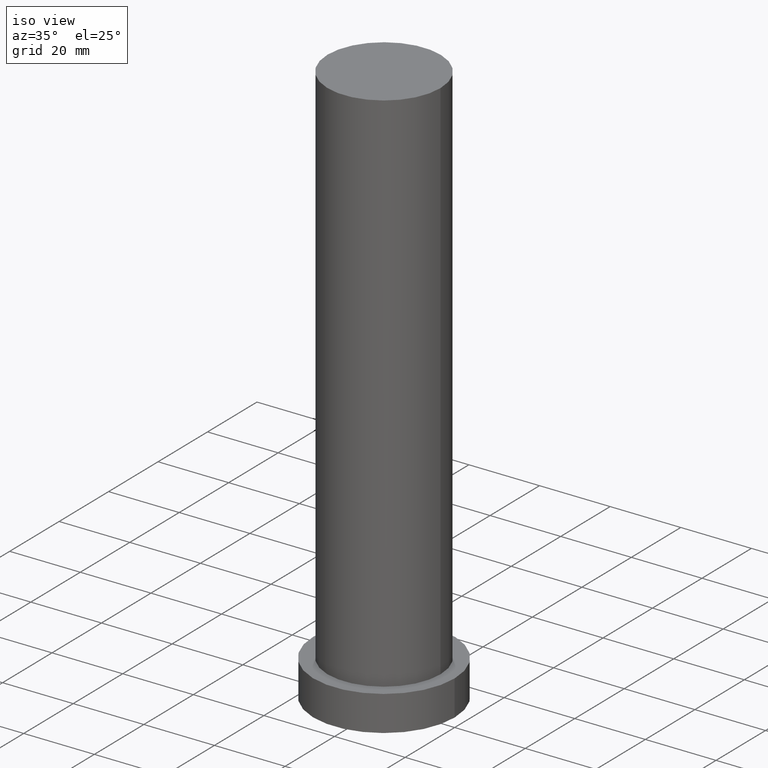
[diagram: clean part render]
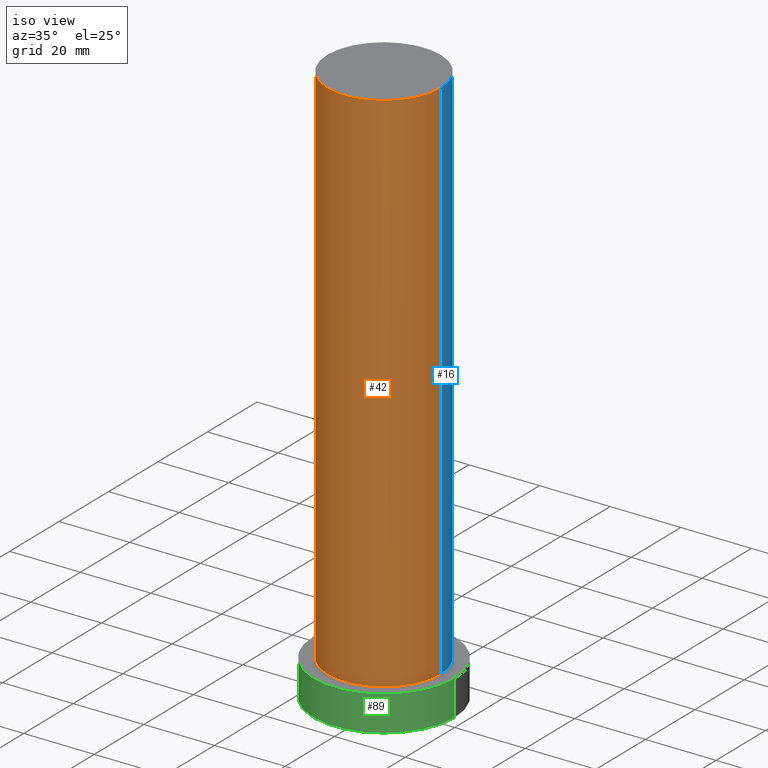
[diagram: same view with three faces highlighted in distinct colors, each labeled with its STEP entity id]
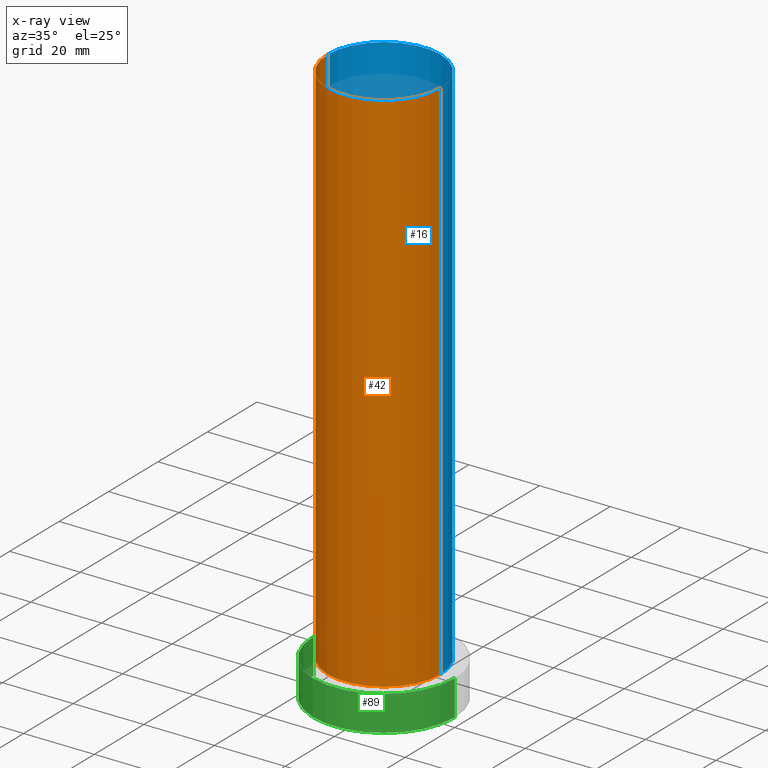
[diagram: x-ray of the same camera — body ghosted, the three highlighted faces saturated]
A machine part, iso view with three faces highlighted in distinct colors.
The next image is the same camera in x-ray (body ghosted, the three faces saturated) — at least one of them is partly hidden behind the body in this view.
Their STEP definitions:

[orange] entity #42 — the highlighted cylindrical surface (partial cylindrical patch) has radius 16 mm, axis along (-0, -0, -1).
#11 = CARTESIAN_POINT ( 'NONE',  ( 0.000000000000000000, 0.000000000000000000, 160.0000000000000000 ) ) ;
#18 = VERTEX_POINT ( 'NONE', #77 ) ;
#19 = AXIS2_PLACEMENT_3D ( 'NONE', #186, #80, #168 ) ;
#20 = CARTESIAN_POINT ( 'NONE',  ( 16.00000000000000000, 1.959434878635765131E-15, 160.0000000000000000 ) ) ;
#23 = CARTESIAN_POINT ( 'NONE',  ( -16.00000000000000000, 0.000000000000000000, 160.0000000000000000 ) ) ;
#36 = AXIS2_PLACEMENT_3D ( 'NONE', #11, #92, #118 ) ;
#38 = CIRCLE ( 'NONE', #19, 16.00000000000000000 ) ;
#42 = ADVANCED_FACE ( 'NONE', ( #75 ), #56, .T. ) ;
#53 = DIRECTION ( 'NONE',  ( 0.000000000000000000, 0.000000000000000000, 1.000000000000000000 ) ) ;
#56 = CYLINDRICAL_SURFACE ( 'NONE', #36, 16.00000000000000000 ) ;
#60 = CIRCLE ( 'NONE', #171, 16.00000000000000000 ) ;
#75 = FACE_OUTER_BOUND ( 'NONE', #195, .T. ) ;
#77 = CARTESIAN_POINT ( 'NONE',  ( -16.00000000000000000, 0.000000000000000000, 10.00000000000000000 ) ) ;
#78 = EDGE_CURVE ( 'NONE', #18, #139, #60, .T. ) ;
#79 = DIRECTION ( 'NONE',  ( -0.000000000000000000, -0.000000000000000000, -1.000000000000000000 ) ) ;
#80 = DIRECTION ( 'NONE',  ( 0.000000000000000000, 0.000000000000000000, 1.000000000000000000 ) ) ;
#92 = DIRECTION ( 'NONE',  ( -0.000000000000000000, -0.000000000000000000, -1.000000000000000000 ) ) ;
#97 = ORIENTED_EDGE ( 'NONE', *, *, #78, .T. ) ;
#99 = CARTESIAN_POINT ( 'NONE',  ( 16.00000000000000000, 1.959434878635765131E-15, 10.00000000000000000 ) ) ;
#101 = LINE ( 'NONE', #102, #233 ) ;
#102 = CARTESIAN_POINT ( 'NONE',  ( 16.00000000000000000, 1.959434878635765131E-15, 160.0000000000000000 ) ) ;
#105 = EDGE_CURVE ( 'NONE', #155, #139, #101, .T. ) ;
#118 = DIRECTION ( 'NONE',  ( -1.000000000000000000, 0.000000000000000000, 0.000000000000000000 ) ) ;
#128 = CARTESIAN_POINT ( 'NONE',  ( -16.00000000000000000, 0.000000000000000000, 160.0000000000000000 ) ) ;
#132 = ORIENTED_EDGE ( 'NONE', *, *, #105, .F. ) ;
#136 = DIRECTION ( 'NONE',  ( 1.000000000000000000, 0.000000000000000000, 0.000000000000000000 ) ) ;
#139 = VERTEX_POINT ( 'NONE', #99 ) ;
#142 = ORIENTED_EDGE ( 'NONE', *, *, #173, .T. ) ;
#155 = VERTEX_POINT ( 'NONE', #20 ) ;
#162 = VECTOR ( 'NONE', #79, 1000.000000000000000 ) ;
#168 = DIRECTION ( 'NONE',  ( 1.000000000000000000, 0.000000000000000000, 0.000000000000000000 ) ) ;
#171 = AXIS2_PLACEMENT_3D ( 'NONE', #232, #53, #136 ) ;
#173 = EDGE_CURVE ( 'NONE', #178, #18, #239, .T. ) ;
#178 = VERTEX_POINT ( 'NONE', #23 ) ;
#185 = DIRECTION ( 'NONE',  ( -0.000000000000000000, -0.000000000000000000, -1.000000000000000000 ) ) ;
#186 = CARTESIAN_POINT ( 'NONE',  ( 0.000000000000000000, 0.000000000000000000, 160.0000000000000000 ) ) ;
#195 = EDGE_LOOP ( 'NONE', ( #132, #217, #142, #97 ) ) ;
#208 = EDGE_CURVE ( 'NONE', #178, #155, #38, .T. ) ;
#217 = ORIENTED_EDGE ( 'NONE', *, *, #208, .F. ) ;
#232 = CARTESIAN_POINT ( 'NONE',  ( 0.000000000000000000, 0.000000000000000000, 10.00000000000000000 ) ) ;
#233 = VECTOR ( 'NONE', #185, 1000.000000000000000 ) ;
#239 = LINE ( 'NONE', #128, #162 ) ;

[blue] entity #16 — the highlighted cylindrical surface (partial cylindrical patch) has radius 16 mm, axis along (-0, -0, -1).
#1 = DIRECTION ( 'NONE',  ( -1.000000000000000000, 0.000000000000000000, 0.000000000000000000 ) ) ;
#6 = EDGE_CURVE ( 'NONE', #139, #18, #240, .T. ) ;
#16 = ADVANCED_FACE ( 'NONE', ( #39 ), #179, .T. ) ;
#18 = VERTEX_POINT ( 'NONE', #77 ) ;
#20 = CARTESIAN_POINT ( 'NONE',  ( 16.00000000000000000, 1.959434878635765131E-15, 160.0000000000000000 ) ) ;
#23 = CARTESIAN_POINT ( 'NONE',  ( -16.00000000000000000, 0.000000000000000000, 160.0000000000000000 ) ) ;
#24 = CARTESIAN_POINT ( 'NONE',  ( 0.000000000000000000, 0.000000000000000000, 160.0000000000000000 ) ) ;
#34 = ORIENTED_EDGE ( 'NONE', *, *, #6, .T. ) ;
#37 = DIRECTION ( 'NONE',  ( 0.000000000000000000, 0.000000000000000000, 1.000000000000000000 ) ) ;
#39 = FACE_OUTER_BOUND ( 'NONE', #255, .T. ) ;
#40 = CARTESIAN_POINT ( 'NONE',  ( 0.000000000000000000, 0.000000000000000000, 160.0000000000000000 ) ) ;
#41 = DIRECTION ( 'NONE',  ( 0.000000000000000000, 0.000000000000000000, 1.000000000000000000 ) ) ;
#58 = AXIS2_PLACEMENT_3D ( 'NONE', #95, #37, #156 ) ;
#72 = ORIENTED_EDGE ( 'NONE', *, *, #105, .T. ) ;
#77 = CARTESIAN_POINT ( 'NONE',  ( -16.00000000000000000, 0.000000000000000000, 10.00000000000000000 ) ) ;
#79 = DIRECTION ( 'NONE',  ( -0.000000000000000000, -0.000000000000000000, -1.000000000000000000 ) ) ;
#95 = CARTESIAN_POINT ( 'NONE',  ( 0.000000000000000000, 0.000000000000000000, 10.00000000000000000 ) ) ;
#99 = CARTESIAN_POINT ( 'NONE',  ( 16.00000000000000000, 1.959434878635765131E-15, 10.00000000000000000 ) ) ;
#101 = LINE ( 'NONE', #102, #233 ) ;
#102 = CARTESIAN_POINT ( 'NONE',  ( 16.00000000000000000, 1.959434878635765131E-15, 160.0000000000000000 ) ) ;
#105 = EDGE_CURVE ( 'NONE', #155, #139, #101, .T. ) ;
#120 = DIRECTION ( 'NONE',  ( -0.000000000000000000, -0.000000000000000000, -1.000000000000000000 ) ) ;
#128 = CARTESIAN_POINT ( 'NONE',  ( -16.00000000000000000, 0.000000000000000000, 160.0000000000000000 ) ) ;
#129 = EDGE_CURVE ( 'NONE', #155, #178, #192, .T. ) ;
#139 = VERTEX_POINT ( 'NONE', #99 ) ;
#146 = AXIS2_PLACEMENT_3D ( 'NONE', #40, #120, #1 ) ;
#147 = AXIS2_PLACEMENT_3D ( 'NONE', #24, #41, #200 ) ;
#155 = VERTEX_POINT ( 'NONE', #20 ) ;
#156 = DIRECTION ( 'NONE',  ( 1.000000000000000000, 0.000000000000000000, 0.000000000000000000 ) ) ;
#159 = ORIENTED_EDGE ( 'NONE', *, *, #173, .F. ) ;
#162 = VECTOR ( 'NONE', #79, 1000.000000000000000 ) ;
#173 = EDGE_CURVE ( 'NONE', #178, #18, #239, .T. ) ;
#178 = VERTEX_POINT ( 'NONE', #23 ) ;
#179 = CYLINDRICAL_SURFACE ( 'NONE', #146, 16.00000000000000000 ) ;
#185 = DIRECTION ( 'NONE',  ( -0.000000000000000000, -0.000000000000000000, -1.000000000000000000 ) ) ;
#192 = CIRCLE ( 'NONE', #147, 16.00000000000000000 ) ;
#200 = DIRECTION ( 'NONE',  ( 1.000000000000000000, 0.000000000000000000, 0.000000000000000000 ) ) ;
#233 = VECTOR ( 'NONE', #185, 1000.000000000000000 ) ;
#239 = LINE ( 'NONE', #128, #162 ) ;
#240 = CIRCLE ( 'NONE', #58, 16.00000000000000000 ) ;
#254 = ORIENTED_EDGE ( 'NONE', *, *, #129, .F. ) ;
#255 = EDGE_LOOP ( 'NONE', ( #254, #72, #34, #159 ) ) ;

[green] entity #89 — the highlighted cylindrical surface (partial cylindrical patch) has radius 20 mm, axis along (-0, -0, -1).
#4 = CARTESIAN_POINT ( 'NONE',  ( 0.000000000000000000, 0.000000000000000000, 10.00000000000000000 ) ) ;
#13 = AXIS2_PLACEMENT_3D ( 'NONE', #74, #197, #157 ) ;
#15 = CYLINDRICAL_SURFACE ( 'NONE', #227, 20.00000000000000000 ) ;
#47 = CIRCLE ( 'NONE', #13, 20.00000000000000000 ) ;
#50 = VERTEX_POINT ( 'NONE', #253 ) ;
#71 = ORIENTED_EDGE ( 'NONE', *, *, #100, .F. ) ;
#73 = EDGE_CURVE ( 'NONE', #244, #158, #47, .T. ) ;
#74 = CARTESIAN_POINT ( 'NONE',  ( 0.000000000000000000, 0.000000000000000000, 0.000000000000000000 ) ) ;
#81 = DIRECTION ( 'NONE',  ( -0.000000000000000000, -0.000000000000000000, -1.000000000000000000 ) ) ;
#82 = CARTESIAN_POINT ( 'NONE',  ( 20.00000000000000000, 2.449293598294706513E-15, 10.00000000000000000 ) ) ;
#89 = ADVANCED_FACE ( 'NONE', ( #117 ), #15, .T. ) ;
#94 = CARTESIAN_POINT ( 'NONE',  ( 0.000000000000000000, 0.000000000000000000, 10.00000000000000000 ) ) ;
#100 = EDGE_CURVE ( 'NONE', #236, #158, #238, .T. ) ;
#117 = FACE_OUTER_BOUND ( 'NONE', #134, .T. ) ;
#124 = DIRECTION ( 'NONE',  ( -1.000000000000000000, 0.000000000000000000, 0.000000000000000000 ) ) ;
#134 = EDGE_LOOP ( 'NONE', ( #71, #249, #247, #141 ) ) ;
#138 = AXIS2_PLACEMENT_3D ( 'NONE', #4, #205, #161 ) ;
#141 = ORIENTED_EDGE ( 'NONE', *, *, #73, .T. ) ;
#143 = CARTESIAN_POINT ( 'NONE',  ( 20.00000000000000000, 2.449293598294706513E-15, 0.000000000000000000 ) ) ;
#145 = CARTESIAN_POINT ( 'NONE',  ( 20.00000000000000000, 2.449293598294706513E-15, 10.00000000000000000 ) ) ;
#148 = CIRCLE ( 'NONE', #138, 20.00000000000000000 ) ;
#157 = DIRECTION ( 'NONE',  ( 1.000000000000000000, 0.000000000000000000, 0.000000000000000000 ) ) ;
#158 = VERTEX_POINT ( 'NONE', #143 ) ;
#161 = DIRECTION ( 'NONE',  ( 1.000000000000000000, 0.000000000000000000, 0.000000000000000000 ) ) ;
#164 = LINE ( 'NONE', #165, #251 ) ;
#165 = CARTESIAN_POINT ( 'NONE',  ( -20.00000000000000000, 0.000000000000000000, 10.00000000000000000 ) ) ;
#166 = EDGE_CURVE ( 'NONE', #50, #244, #164, .T. ) ;
#182 = CARTESIAN_POINT ( 'NONE',  ( -20.00000000000000000, 0.000000000000000000, 0.000000000000000000 ) ) ;
#187 = DIRECTION ( 'NONE',  ( -0.000000000000000000, -0.000000000000000000, -1.000000000000000000 ) ) ;
#197 = DIRECTION ( 'NONE',  ( 0.000000000000000000, 0.000000000000000000, 1.000000000000000000 ) ) ;
#205 = DIRECTION ( 'NONE',  ( 0.000000000000000000, 0.000000000000000000, 1.000000000000000000 ) ) ;
#218 = EDGE_CURVE ( 'NONE', #50, #236, #148, .T. ) ;
#227 = AXIS2_PLACEMENT_3D ( 'NONE', #94, #234, #124 ) ;
#234 = DIRECTION ( 'NONE',  ( -0.000000000000000000, -0.000000000000000000, -1.000000000000000000 ) ) ;
#236 = VERTEX_POINT ( 'NONE', #82 ) ;
#237 = VECTOR ( 'NONE', #81, 1000.000000000000000 ) ;
#238 = LINE ( 'NONE', #145, #237 ) ;
#244 = VERTEX_POINT ( 'NONE', #182 ) ;
#247 = ORIENTED_EDGE ( 'NONE', *, *, #166, .T. ) ;
#249 = ORIENTED_EDGE ( 'NONE', *, *, #218, .F. ) ;
#251 = VECTOR ( 'NONE', #187, 1000.000000000000000 ) ;
#253 = CARTESIAN_POINT ( 'NONE',  ( -20.00000000000000000, 0.000000000000000000, 10.00000000000000000 ) ) ;